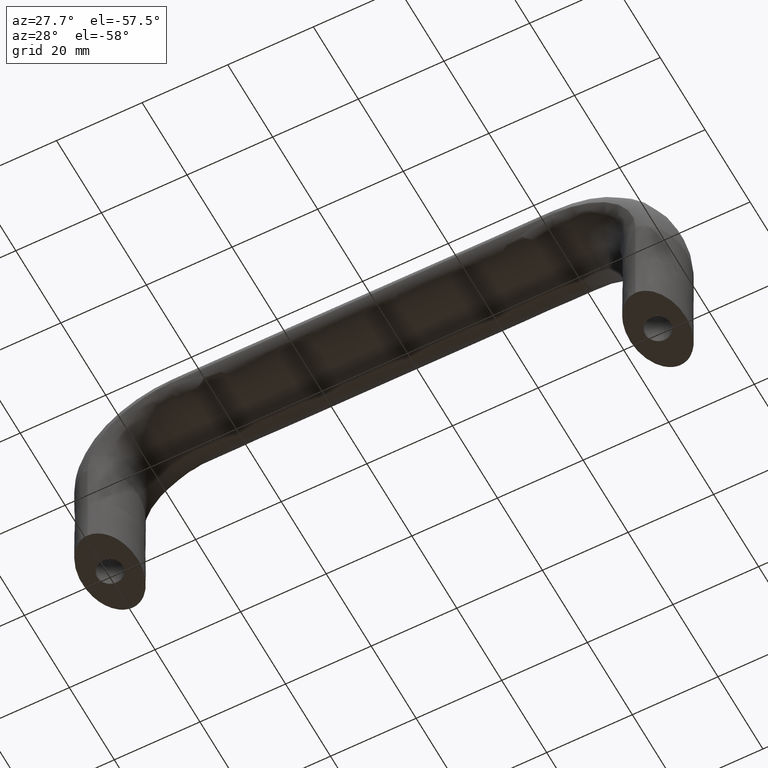
[diagram: clean part render]
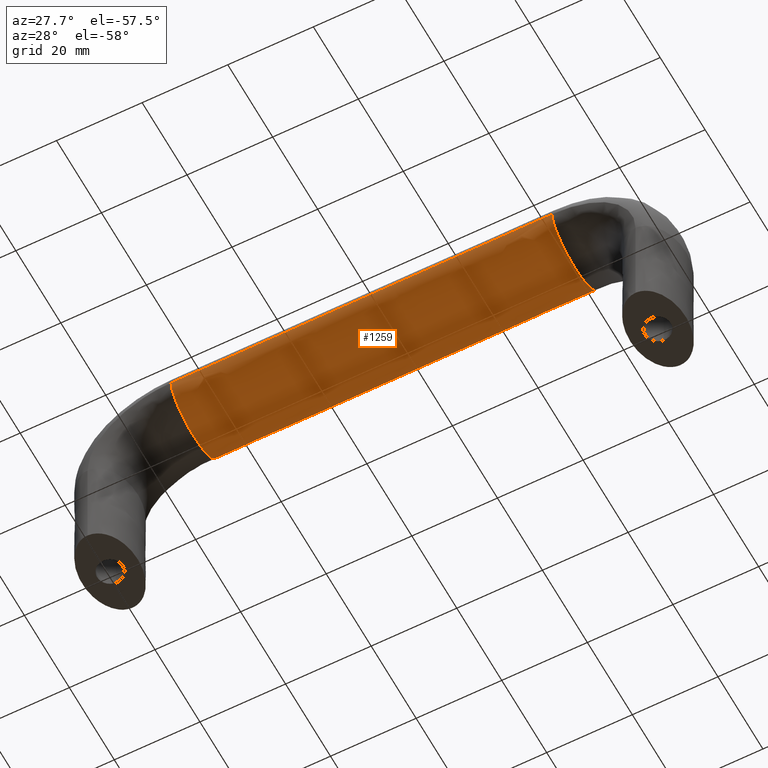
[diagram: same view with one face highlighted and labeled with its STEP entity id]
A machine part, auxiliary view. The second image highlights one B-rep face of the part: STEP entity #1259.
In plain terms, the highlighted face is a freeform B-spline surface patch.
Its self-contained STEP definition (entity closure, byte-faithful):
#750=CARTESIAN_POINT('',(108.500007000000000,8.755444309227858,41.370790612510277));
#751=VERTEX_POINT('',#750);
#765=CARTESIAN_POINT('',(108.500007000000000,10.0,44.500007999999852));
#766=VERTEX_POINT('',#765);
#767=CARTESIAN_POINT('',(108.500007000000000,8.755444309227858,41.370790612510277));
#768=CARTESIAN_POINT('',(108.500007000000000,9.558561397034483,42.326129193000668));
#769=CARTESIAN_POINT('',(108.500007000000000,10.0,43.410922546568749));
#770=CARTESIAN_POINT('',(108.500007000000000,10.0,44.500007999999852));
#771=B_SPLINE_CURVE_WITH_KNOTS('',3,(#767,#768,#769,#770),.UNSPECIFIED.,.F.,.U.,(4,4),(0.419999999986289,0.500000000000000),.UNSPECIFIED.);
#772=EDGE_CURVE('',#751,#766,#771,.T.);
#774=CARTESIAN_POINT('',(108.500007000000000,9.039503756692849,47.265149685643273));
#775=VERTEX_POINT('',#774);
#776=CARTESIAN_POINT('',(108.500007000000000,10.0,44.500007999999852));
#777=CARTESIAN_POINT('',(108.500007000000000,10.0,45.452957771779197));
#778=CARTESIAN_POINT('',(108.500007000000000,9.662023569585280,46.402621404600751));
#779=CARTESIAN_POINT('',(108.500007000000000,9.039503756692849,47.265149685643273));
#780=B_SPLINE_CURVE_WITH_KNOTS('',3,(#776,#777,#778,#779),.UNSPECIFIED.,.F.,.U.,(4,4),(0.500000000000000,0.570000000013990),.UNSPECIFIED.);
#781=EDGE_CURVE('',#766,#775,#780,.T.);
#783=CARTESIAN_POINT('',(108.500007000000000,-10.0,44.500007999999852));
#784=VERTEX_POINT('',#783);
#899=CARTESIAN_POINT('',(108.500007000000000,-10.0,44.500007999999852));
#900=CARTESIAN_POINT('',(108.500007000000000,-10.0,42.798311979305403));
#901=CARTESIAN_POINT('',(108.500007000000000,-8.922269036098131,41.107094718038553));
#902=CARTESIAN_POINT('',(108.500007000000000,-5.219866587632820,38.700533126536087));
#903=CARTESIAN_POINT('',(108.500007000000000,-2.617993877991495,38.000007999999852));
#904=CARTESIAN_POINT('',(108.500007000000000,2.617993877991495,38.000007999999852));
#905=CARTESIAN_POINT('',(108.500007000000000,5.219866587632830,38.700533126536087));
#906=CARTESIAN_POINT('',(108.500007000000000,7.737500252386183,40.336995008625777));
#907=CARTESIAN_POINT('',(108.500007000000000,8.303690947229100,40.833412660856517));
#908=CARTESIAN_POINT('',(108.500007000000000,8.755444309227858,41.370790612510277));
#909=B_SPLINE_CURVE_WITH_KNOTS('',3,(#899,#900,#901,#902,#903,#904,#905,#906,#907,#908),.UNSPECIFIED.,.F.,.U.,(4,2,2,2,4),(0.0,0.125000000000000,0.250000000000000,0.375000000000000,0.419999999986289),.UNSPECIFIED.);
#910=EDGE_CURVE('',#784,#751,#909,.T.);
#998=CARTESIAN_POINT('',(19.500000000000000,9.039503756692850,47.265141685643357));
#999=VERTEX_POINT('',#998);
#1000=CARTESIAN_POINT('',(19.500000000000000,9.039503756692850,47.265141685643357));
#1001=CARTESIAN_POINT('',(23.208281354448619,9.039503756879462,47.279061864487538));
#1002=CARTESIAN_POINT('',(26.916667250010001,9.039503756879462,47.265149685384714));
#1003=CARTESIAN_POINT('',(34.333334499989903,9.039503756879462,47.265149685384714));
#1004=CARTESIAN_POINT('',(38.041668125010048,9.039503756879462,47.265149685384714));
#1005=CARTESIAN_POINT('',(49.166668999979912,9.039503756879462,47.265149685384714));
#1006=CARTESIAN_POINT('',(56.583336250030300,9.039503756879462,47.265149685384714));
#1007=CARTESIAN_POINT('',(71.416670749969597,9.039503756879462,47.265149685384714));
#1008=CARTESIAN_POINT('',(78.833338000143399,9.039503756879462,47.265149685384714));
#1009=CARTESIAN_POINT('',(89.958338874928103,9.039503756879462,47.265149685384714));
#1010=CARTESIAN_POINT('',(93.666672499994490,9.039503756879462,47.265149685384714));
#1011=CARTESIAN_POINT('',(101.083339750005390,9.039503756879462,47.265149685384714));
#1012=CARTESIAN_POINT('',(104.791725699267500,9.039503756879462,47.279069864285972));
#1013=CARTESIAN_POINT('',(108.500007000000000,9.039503756692849,47.265149685643273));
#1014=B_SPLINE_CURVE_WITH_KNOTS('',3,(#1000,#1001,#1002,#1003,#1004,#1005,#1006,#1007,#1008,#1009,#1010,#1011,#1012,#1013),.UNSPECIFIED.,.F.,.U.,(4,2,2,2,2,2,4),(0.277790037325163,0.333342527993871,0.388895018662581,0.500000000000000,0.611104981337419,0.666657472006128,0.722209962674838),.UNSPECIFIED.);
#1015=EDGE_CURVE('',#999,#775,#1014,.T.);
#1017=CARTESIAN_POINT('',(19.500000000000000,-10.0,44.499999999999950));
#1018=VERTEX_POINT('',#1017);
#1032=CARTESIAN_POINT('',(19.500000000000000,-10.0,44.499999999999950));
#1033=CARTESIAN_POINT('',(23.208273629977320,-10.0,44.514908840575480));
#1034=CARTESIAN_POINT('',(26.916667250010001,-10.0,44.500007999999852));
#1035=CARTESIAN_POINT('',(34.333334499989903,-10.0,44.500007999999852));
#1036=CARTESIAN_POINT('',(38.041668125010048,-10.0,44.500007999999852));
#1037=CARTESIAN_POINT('',(49.166668999979912,-10.0,44.500007999999852));
#1038=CARTESIAN_POINT('',(56.583336250030300,-10.0,44.500007999999852));
#1039=CARTESIAN_POINT('',(71.416670749969597,-10.0,44.500007999999852));
#1040=CARTESIAN_POINT('',(78.833338000143399,-10.0,44.500007999999852));
#1041=CARTESIAN_POINT('',(89.958338874928103,-10.0,44.500007999999852));
#1042=CARTESIAN_POINT('',(93.666672499994490,-10.0,44.500007999999852));
#1043=CARTESIAN_POINT('',(101.083339750005390,-10.0,44.500007999999852));
#1044=CARTESIAN_POINT('',(104.791733427554700,-10.0,44.514916840344121));
#1045=CARTESIAN_POINT('',(108.500007000000000,-10.0,44.500007999999852));
#1046=B_SPLINE_CURVE_WITH_KNOTS('',3,(#1032,#1033,#1034,#1035,#1036,#1037,#1038,#1039,#1040,#1041,#1042,#1043,#1044,#1045),.UNSPECIFIED.,.F.,.U.,(4,2,2,2,2,2,4),(0.277790037325163,0.333342527993871,0.388895018662581,0.500000000000000,0.611104981337419,0.666657472006128,0.722209962674838),.UNSPECIFIED.);
#1047=EDGE_CURVE('',#1018,#784,#1046,.T.);
#1052=CARTESIAN_POINT('',(19.500000000000000,-10.0,44.499999999999950));
#1053=CARTESIAN_POINT('',(19.500000000000000,-10.0,42.798303979305501));
#1054=CARTESIAN_POINT('',(19.500000000000000,-8.922269036098131,41.107086718038651));
#1055=CARTESIAN_POINT('',(19.500000000000000,-5.219866587632820,38.700525126536199));
#1056=CARTESIAN_POINT('',(19.500000000000000,-2.617993877991495,38.0));
#1057=CARTESIAN_POINT('',(19.500000000000000,2.617993877991495,38.0));
#1058=CARTESIAN_POINT('',(19.500000000000000,5.219866587632830,38.700525126536199));
#1059=CARTESIAN_POINT('',(19.500000000000000,8.922269036098131,41.107086718038651));
#1060=CARTESIAN_POINT('',(19.500000000000000,10.0,42.798303979305501));
#1061=CARTESIAN_POINT('',(19.500000000000000,10.0,45.452949771588841));
#1062=CARTESIAN_POINT('',(19.500000000000000,9.662023569720375,46.402613404221249));
#1063=CARTESIAN_POINT('',(19.500000000000000,9.039503756879462,47.265141685384812));
#1064=CARTESIAN_POINT('',(23.208273629977320,-10.0,44.514908840575480));
#1065=CARTESIAN_POINT('',(23.208268435173849,-10.0,42.813859171025648));
#1066=CARTESIAN_POINT('',(23.208262132314498,-8.922269036098131,41.123376185278950));
#1067=CARTESIAN_POINT('',(23.208251452545650,-5.219866587632820,38.717988403680948));
#1068=CARTESIAN_POINT('',(23.208247890285548,-2.617993877991495,38.017837624769548));
#1069=CARTESIAN_POINT('',(23.208247890285548,2.617993877991495,38.017837624769548));
#1070=CARTESIAN_POINT('',(23.208251452545550,5.219866587632830,38.717988403696047));
#1071=CARTESIAN_POINT('',(23.208262132314651,8.922269036098131,41.123376185264853));
#1072=CARTESIAN_POINT('',(23.208268435173849,10.0,42.813859171025648));
#1073=CARTESIAN_POINT('',(23.208276539067271,10.0,45.467496655523377));
#1074=CARTESIAN_POINT('',(23.208279154756720,9.662023569720375,46.416823787789781));
#1075=CARTESIAN_POINT('',(23.208281354448619,9.039503756879462,47.279061864487552));
#1076=CARTESIAN_POINT('',(26.916667250010001,-10.0,44.500007999999852));
#1077=CARTESIAN_POINT('',(26.916667250010001,-10.0,42.798311979305403));
#1078=CARTESIAN_POINT('',(26.916667250010001,-8.922269036098131,41.107094718038553));
#1079=CARTESIAN_POINT('',(26.916667250010001,-5.219866587632820,38.700533126536087));
#1080=CARTESIAN_POINT('',(26.916667250010001,-2.617993877991495,38.000007999999852));
#1081=CARTESIAN_POINT('',(26.916667250010001,2.617993877991495,38.000007999999852));
#1082=CARTESIAN_POINT('',(26.916667250010001,5.219866587632830,38.700533126536087));
#1083=CARTESIAN_POINT('',(26.916667250010001,8.922269036098131,41.107094718038553));
#1084=CARTESIAN_POINT('',(26.916667250010001,10.0,42.798311979305403));
#1085=CARTESIAN_POINT('',(26.916667250010001,10.0,45.452957771588743));
#1086=CARTESIAN_POINT('',(26.916667250010001,9.662023569720375,46.402621404221158));
#1087=CARTESIAN_POINT('',(26.916667250010001,9.039503756879462,47.265149685384714));
#1088=CARTESIAN_POINT('',(34.333334499989903,-10.0,44.500007999999852));
#1089=CARTESIAN_POINT('',(34.333334499989903,-10.0,42.798311979305403));
#1090=CARTESIAN_POINT('',(34.333334499989903,-8.922269036098131,41.107094718038553));
#1091=CARTESIAN_POINT('',(34.333334499989903,-5.219866587632820,38.700533126536087));
#1092=CARTESIAN_POINT('',(34.333334499989903,-2.617993877991495,38.000007999999852));
#1093=CARTESIAN_POINT('',(34.333334499989903,2.617993877991495,38.000007999999852));
#1094=CARTESIAN_POINT('',(34.333334499989903,5.219866587632830,38.700533126536087));
#1095=CARTESIAN_POINT('',(34.333334499989903,8.922269036098131,41.107094718038553));
#1096=CARTESIAN_POINT('',(34.333334499989903,10.0,42.798311979305403));
#1097=CARTESIAN_POINT('',(34.333334499989903,10.0,45.452957771588743));
#1098=CARTESIAN_POINT('',(34.333334499989903,9.662023569720375,46.402621404221158));
#1099=CARTESIAN_POINT('',(34.333334499989903,9.039503756879462,47.265149685384714));
#1100=CARTESIAN_POINT('',(38.041668125010048,-10.0,44.500007999999852));
#1101=CARTESIAN_POINT('',(38.041668125010048,-10.0,42.798311979305403));
#1102=CARTESIAN_POINT('',(38.041668125010048,-8.922269036098131,41.107094718038553));
#1103=CARTESIAN_POINT('',(38.041668125010048,-5.219866587632820,38.700533126536087));
#1104=CARTESIAN_POINT('',(38.041668125010048,-2.617993877991495,38.000007999999852));
#1105=CARTESIAN_POINT('',(38.041668125010048,2.617993877991495,38.000007999999852));
#1106=CARTESIAN_POINT('',(38.041668125010048,5.219866587632830,38.700533126536087));
#1107=CARTESIAN_POINT('',(38.041668125010048,8.922269036098131,41.107094718038553));
#1108=CARTESIAN_POINT('',(38.041668125010048,10.0,42.798311979305403));
#1109=CARTESIAN_POINT('',(38.041668125010048,10.0,45.452957771588743));
#1110=CARTESIAN_POINT('',(38.041668125010048,9.662023569720375,46.402621404221158));
#1111=CARTESIAN_POINT('',(38.041668125010048,9.039503756879462,47.265149685384714));
#1112=CARTESIAN_POINT('',(49.166668999979912,-10.0,44.500007999999852));
#1113=CARTESIAN_POINT('',(49.166668999979912,-10.0,42.798311979305403));
#1114=CARTESIAN_POINT('',(49.166668999979912,-8.922269036098131,41.107094718038553));
#1115=CARTESIAN_POINT('',(49.166668999979912,-5.219866587632820,38.700533126536087));
#1116=CARTESIAN_POINT('',(49.166668999979912,-2.617993877991495,38.000007999999852));
#1117=CARTESIAN_POINT('',(49.166668999979912,2.617993877991495,38.000007999999852));
#1118=CARTESIAN_POINT('',(49.166668999979912,5.219866587632830,38.700533126536087));
#1119=CARTESIAN_POINT('',(49.166668999979912,8.922269036098131,41.107094718038553));
#1120=CARTESIAN_POINT('',(49.166668999979912,10.0,42.798311979305403));
#1121=CARTESIAN_POINT('',(49.166668999979912,10.0,45.452957771588743));
#1122=CARTESIAN_POINT('',(49.166668999979912,9.662023569720375,46.402621404221158));
#1123=CARTESIAN_POINT('',(49.166668999979912,9.039503756879462,47.265149685384714));
#1124=CARTESIAN_POINT('',(56.583336250030300,-10.0,44.500007999999852));
#1125=CARTESIAN_POINT('',(56.583336250030300,-10.0,42.798311979305403));
#1126=CARTESIAN_POINT('',(56.583336250030300,-8.922269036098131,41.107094718038553));
#1127=CARTESIAN_POINT('',(56.583336250030300,-5.219866587632820,38.700533126536087));
#1128=CARTESIAN_POINT('',(56.583336250030300,-2.617993877991495,38.000007999999852));
#1129=CARTESIAN_POINT('',(56.583336250030300,2.617993877991495,38.000007999999852));
#1130=CARTESIAN_POINT('',(56.583336250030300,5.219866587632830,38.700533126536087));
#1131=CARTESIAN_POINT('',(56.583336250030300,8.922269036098131,41.107094718038553));
#1132=CARTESIAN_POINT('',(56.583336250030300,10.0,42.798311979305403));
#1133=CARTESIAN_POINT('',(56.583336250030300,10.0,45.452957771588743));
#1134=CARTESIAN_POINT('',(56.583336250030300,9.662023569720375,46.402621404221158));
#1135=CARTESIAN_POINT('',(56.583336250030300,9.039503756879462,47.265149685384714));
#1136=CARTESIAN_POINT('',(71.416670749969597,-10.0,44.500007999999852));
#1137=CARTESIAN_POINT('',(71.416670749969597,-10.0,42.798311979305403));
#1138=CARTESIAN_POINT('',(71.416670749969597,-8.922269036098131,41.107094718038553));
#1139=CARTESIAN_POINT('',(71.416670749969597,-5.219866587632820,38.700533126536087));
#1140=CARTESIAN_POINT('',(71.416670749969597,-2.617993877991495,38.000007999999852));
#1141=CARTESIAN_POINT('',(71.416670749969597,2.617993877991495,38.000007999999852));
#1142=CARTESIAN_POINT('',(71.416670749969597,5.219866587632830,38.700533126536087));
#1143=CARTESIAN_POINT('',(71.416670749969597,8.922269036098131,41.107094718038553));
#1144=CARTESIAN_POINT('',(71.416670749969597,10.0,42.798311979305403));
#1145=CARTESIAN_POINT('',(71.416670749969597,10.0,45.452957771588743));
#1146=CARTESIAN_POINT('',(71.416670749969597,9.662023569720375,46.402621404221158));
#1147=CARTESIAN_POINT('',(71.416670749969597,9.039503756879462,47.265149685384714));
#1148=CARTESIAN_POINT('',(78.833338000143399,-10.0,44.500007999999852));
#1149=CARTESIAN_POINT('',(78.833338000143399,-10.0,42.798311979305403));
#1150=CARTESIAN_POINT('',(78.833338000143399,-8.922269036098131,41.107094718038553));
#1151=CARTESIAN_POINT('',(78.833338000143399,-5.219866587632820,38.700533126536087));
#1152=CARTESIAN_POINT('',(78.833338000143399,-2.617993877991495,38.000007999999852));
#1153=CARTESIAN_POINT('',(78.833338000143399,2.617993877991495,38.000007999999852));
#1154=CARTESIAN_POINT('',(78.833338000143399,5.219866587632830,38.700533126536087));
#1155=CARTESIAN_POINT('',(78.833338000143399,8.922269036098131,41.107094718038553));
#1156=CARTESIAN_POINT('',(78.833338000143399,10.0,42.798311979305403));
#1157=CARTESIAN_POINT('',(78.833338000143399,10.0,45.452957771588743));
#1158=CARTESIAN_POINT('',(78.833338000143399,9.662023569720375,46.402621404221158));
#1159=CARTESIAN_POINT('',(78.833338000143399,9.039503756879462,47.265149685384714));
#1160=CARTESIAN_POINT('',(89.958338874928103,-10.0,44.500007999999852));
#1161=CARTESIAN_POINT('',(89.958338874928103,-10.0,42.798311979305403));
#1162=CARTESIAN_POINT('',(89.958338874928103,-8.922269036098131,41.107094718038553));
#1163=CARTESIAN_POINT('',(89.958338874928103,-5.219866587632820,38.700533126536087));
#1164=CARTESIAN_POINT('',(89.958338874928103,-2.617993877991495,38.000007999999852));
#1165=CARTESIAN_POINT('',(89.958338874928103,2.617993877991495,38.000007999999852));
#1166=CARTESIAN_POINT('',(89.958338874928103,5.219866587632830,38.700533126536087));
#1167=CARTESIAN_POINT('',(89.958338874928103,8.922269036098131,41.107094718038553));
#1168=CARTESIAN_POINT('',(89.958338874928103,10.0,42.798311979305403));
#1169=CARTESIAN_POINT('',(89.958338874928103,10.0,45.452957771588743));
#1170=CARTESIAN_POINT('',(89.958338874928103,9.662023569720375,46.402621404221158));
#1171=CARTESIAN_POINT('',(89.958338874928103,9.039503756879462,47.265149685384714));
#1172=CARTESIAN_POINT('',(93.666672499994490,-10.0,44.500007999999852));
#1173=CARTESIAN_POINT('',(93.666672499994490,-10.0,42.798311979305403));
#1174=CARTESIAN_POINT('',(93.666672499994490,-8.922269036098131,41.107094718038553));
#1175=CARTESIAN_POINT('',(93.666672499994490,-5.219866587632820,38.700533126536087));
#1176=CARTESIAN_POINT('',(93.666672499994490,-2.617993877991495,38.000007999999852));
#1177=CARTESIAN_POINT('',(93.666672499994490,2.617993877991495,38.000007999999852));
#1178=CARTESIAN_POINT('',(93.666672499994490,5.219866587632830,38.700533126536087));
#1179=CARTESIAN_POINT('',(93.666672499994490,8.922269036098131,41.107094718038553));
#1180=CARTESIAN_POINT('',(93.666672499994490,10.0,42.798311979305403));
#1181=CARTESIAN_POINT('',(93.666672499994490,10.0,45.452957771588743));
#1182=CARTESIAN_POINT('',(93.666672499994490,9.662023569720375,46.402621404221158));
#1183=CARTESIAN_POINT('',(93.666672499994490,9.039503756879462,47.265149685384714));
#1184=CARTESIAN_POINT('',(101.083339750005390,-10.0,44.500007999999852));
#1185=CARTESIAN_POINT('',(101.083339750005390,-10.0,42.798311979305403));
#1186=CARTESIAN_POINT('',(101.083339750005390,-8.922269036098131,41.107094718038553));
#1187=CARTESIAN_POINT('',(101.083339750005390,-5.219866587632820,38.700533126536087));
#1188=CARTESIAN_POINT('',(101.083339750005390,-2.617993877991495,38.000007999999852));
#1189=CARTESIAN_POINT('',(101.083339750005390,2.617993877991495,38.000007999999852));
#1190=CARTESIAN_POINT('',(101.083339750005390,5.219866587632830,38.700533126536087));
#1191=CARTESIAN_POINT('',(101.083339750005390,8.922269036098131,41.107094718038553));
#1192=CARTESIAN_POINT('',(101.083339750005390,10.0,42.798311979305403));
#1193=CARTESIAN_POINT('',(101.083339750005390,10.0,45.452957771588743));
#1194=CARTESIAN_POINT('',(101.083339750005390,9.662023569720375,46.402621404221158));
#1195=CARTESIAN_POINT('',(101.083339750005390,9.039503756879462,47.265149685384714));
#1196=CARTESIAN_POINT('',(104.791733427554700,-10.0,44.514916840344121));
#1197=CARTESIAN_POINT('',(104.791738624853000,-10.0,42.813867170774252));
#1198=CARTESIAN_POINT('',(104.791744930546200,-8.922269036098131,41.123384185003196));
#1199=CARTESIAN_POINT('',(104.791755614845800,-5.219866587632820,38.717996403363948));
#1200=CARTESIAN_POINT('',(104.791759178550610,-2.617993877991495,38.017845624438799));
#1201=CARTESIAN_POINT('',(104.791759178550610,2.617993877991495,38.017845624438799));
#1202=CARTESIAN_POINT('',(104.791755614846000,5.219866587632830,38.717996403379097));
#1203=CARTESIAN_POINT('',(104.791744930546200,8.922269036098131,41.123384184989099));
#1204=CARTESIAN_POINT('',(104.791738624853000,10.0,42.813867170774252));
#1205=CARTESIAN_POINT('',(104.791730517067710,10.0,45.467504655303252));
#1206=CARTESIAN_POINT('',(104.791727900079390,9.662023569720375,46.416831787579717));
#1207=CARTESIAN_POINT('',(104.791725699267500,9.039503756879462,47.279069864285972));
#1208=CARTESIAN_POINT('',(108.500007000000000,-10.0,44.500007999999852));
#1209=CARTESIAN_POINT('',(108.500007000000000,-10.0,42.798311979305403));
#1210=CARTESIAN_POINT('',(108.500007000000000,-8.922269036098131,41.107094718038553));
#1211=CARTESIAN_POINT('',(108.500007000000000,-5.219866587632820,38.700533126536087));
#1212=CARTESIAN_POINT('',(108.500007000000000,-2.617993877991495,38.000007999999852));
#1213=CARTESIAN_POINT('',(108.500007000000000,2.617993877991495,38.000007999999852));
#1214=CARTESIAN_POINT('',(108.500007000000000,5.219866587632830,38.700533126536087));
#1215=CARTESIAN_POINT('',(108.500007000000000,8.922269036098131,41.107094718038553));
#1216=CARTESIAN_POINT('',(108.500007000000000,10.0,42.798311979305403));
#1217=CARTESIAN_POINT('',(108.500007000000000,10.0,45.452957771588743));
#1218=CARTESIAN_POINT('',(108.500007000000000,9.662023569720375,46.402621404221158));
#1219=CARTESIAN_POINT('',(108.500007000000000,9.039503756879462,47.265149685384714));
#1220=B_SPLINE_SURFACE_WITH_KNOTS('',3,3,((#1052,#1064,#1076,#1088,#1100,#1112,#1124,#1136,#1148,#1160,#1172,#1184,#1196,#1208),(#1053,#1065,#1077,#1089,#1101,#1113,#1125,#1137,#1149,#1161,#1173,#1185,#1197,#1209),(#1054,#1066,#1078,#1090,#1102,#1114,#1126,#1138,#1150,#1162,#1174,#1186,#1198,#1210),(#1055,#1067,#1079,#1091,#1103,#1115,#1127,#1139,#1151,#1163,#1175,#1187,#1199,#1211),(#1056,#1068,#1080,#1092,#1104,#1116,#1128,#1140,#1152,#1164,#1176,#1188,#1200,#1212),(#1057,#1069,#1081,#1093,#1105,#1117,#1129,#1141,#1153,#1165,#1177,#1189,#1201,#1213),(#1058,#1070,#1082,#1094,#1106,#1118,#1130,#1142,#1154,#1166,#1178,#1190,#1202,#1214),(#1059,#1071,#1083,#1095,#1107,#1119,#1131,#1143,#1155,#1167,#1179,#1191,#1203,#1215),(#1060,#1072,#1084,#1096,#1108,#1120,#1132,#1144,#1156,#1168,#1180,#1192,#1204,#1216),(#1061,#1073,#1085,#1097,#1109,#1121,#1133,#1145,#1157,#1169,#1181,#1193,#1205,#1217),(#1062,#1074,#1086,#1098,#1110,#1122,#1134,#1146,#1158,#1170,#1182,#1194,#1206,#1218),(#1063,#1075,#1087,#1099,#1111,#1123,#1135,#1147,#1159,#1171,#1183,#1195,#1207,#1219)),.UNSPECIFIED.,.F.,.F.,.U.,(4,2,2,2,2,4),(4,2,2,2,2,2,4),(0.0,7.693621656700124,15.387243313400250,23.080864970100372,30.774486626800499,35.082914754552561),(0.0,11.125099667082941,22.250199334165970,44.500398668332060,66.750598002498137,77.875697669581072,89.000797336664206),.UNSPECIFIED.);
#1221=ORIENTED_EDGE('',*,*,#781,.F.);
#1222=ORIENTED_EDGE('',*,*,#772,.F.);
#1223=ORIENTED_EDGE('',*,*,#910,.F.);
#1224=ORIENTED_EDGE('',*,*,#1047,.F.);
#1225=CARTESIAN_POINT('',(19.500000000000000,8.755444309227860,41.370782612510382));
#1226=VERTEX_POINT('',#1225);
#1227=CARTESIAN_POINT('',(19.500000000000000,-10.0,44.499999999999950));
#1228=CARTESIAN_POINT('',(19.500000000000000,-10.0,42.798303979305501));
#1229=CARTESIAN_POINT('',(19.500000000000000,-8.922269036098131,41.107086718038651));
#1230=CARTESIAN_POINT('',(19.500000000000000,-5.219866587632820,38.700525126536199));
#1231=CARTESIAN_POINT('',(19.500000000000000,-2.617993877991495,38.0));
#1232=CARTESIAN_POINT('',(19.500000000000000,2.617993877991495,38.0));
#1233=CARTESIAN_POINT('',(19.500000000000000,5.219866587632830,38.700525126536199));
#1234=CARTESIAN_POINT('',(19.500000000000000,7.737500252386183,40.336987008625883));
#1235=CARTESIAN_POINT('',(19.500000000000000,8.303690947229100,40.833404660856630));
#1236=CARTESIAN_POINT('',(19.500000000000000,8.755444309227860,41.370782612510382));
#1237=B_SPLINE_CURVE_WITH_KNOTS('',3,(#1227,#1228,#1229,#1230,#1231,#1232,#1233,#1234,#1235,#1236),.UNSPECIFIED.,.F.,.U.,(4,2,2,2,4),(0.0,0.125000000000000,0.250000000000000,0.375000000000000,0.419999999986289),.UNSPECIFIED.);
#1238=EDGE_CURVE('',#1018,#1226,#1237,.T.);
#1239=ORIENTED_EDGE('',*,*,#1238,.T.);
#1240=CARTESIAN_POINT('',(19.500000000000000,10.0,44.499999999999950));
#1241=VERTEX_POINT('',#1240);
#1242=CARTESIAN_POINT('',(19.500000000000000,8.755444309227860,41.370782612510382));
#1243=CARTESIAN_POINT('',(19.500000000000000,9.558561397034483,42.326121193000773));
#1244=CARTESIAN_POINT('',(19.500000000000000,10.0,43.410914546568847));
#1245=CARTESIAN_POINT('',(19.500000000000000,10.0,44.499999999999950));
#1246=B_SPLINE_CURVE_WITH_KNOTS('',3,(#1242,#1243,#1244,#1245),.UNSPECIFIED.,.F.,.U.,(4,4),(0.419999999986289,0.500000000000000),.UNSPECIFIED.);
#1247=EDGE_CURVE('',#1226,#1241,#1246,.T.);
#1248=ORIENTED_EDGE('',*,*,#1247,.T.);
#1249=CARTESIAN_POINT('',(19.500000000000000,10.0,44.499999999999950));
#1250=CARTESIAN_POINT('',(19.500000000000000,10.0,45.452949771779302));
#1251=CARTESIAN_POINT('',(19.500000000000000,9.662023569585280,46.402613404600842));
#1252=CARTESIAN_POINT('',(19.500000000000000,9.039503756692850,47.265141685643357));
#1253=B_SPLINE_CURVE_WITH_KNOTS('',3,(#1249,#1250,#1251,#1252),.UNSPECIFIED.,.F.,.U.,(4,4),(0.500000000000000,0.570000000013990),.UNSPECIFIED.);
#1254=EDGE_CURVE('',#1241,#999,#1253,.T.);
#1255=ORIENTED_EDGE('',*,*,#1254,.T.);
#1256=ORIENTED_EDGE('',*,*,#1015,.T.);
#1257=EDGE_LOOP('',(#1221,#1222,#1223,#1224,#1239,#1248,#1255,#1256));
#1258=FACE_OUTER_BOUND('',#1257,.T.);
#1259=ADVANCED_FACE('',(#1258),#1220,.T.);